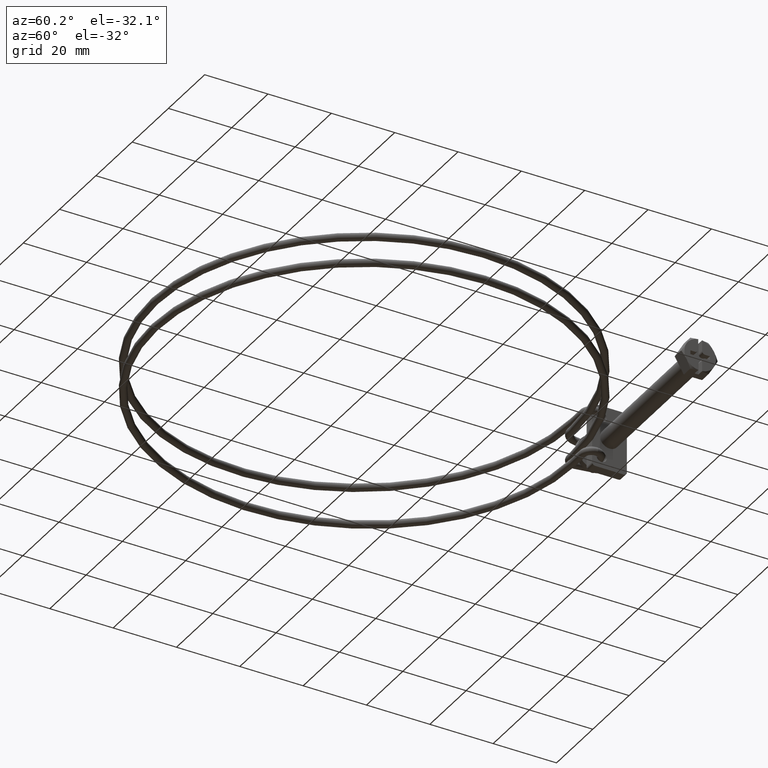
[diagram: clean part render]
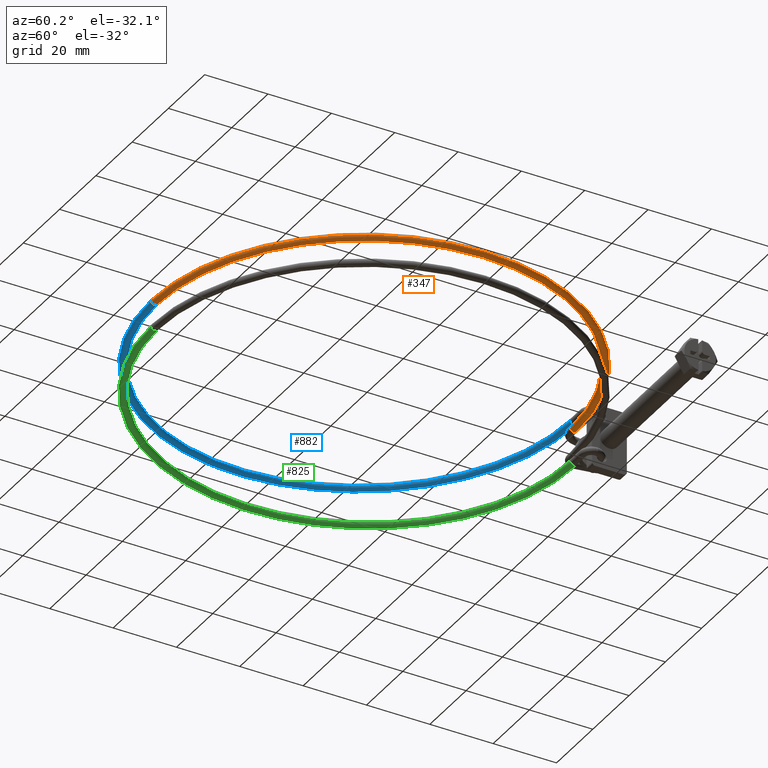
[diagram: same view with three faces highlighted in distinct colors, each labeled with its STEP entity id]
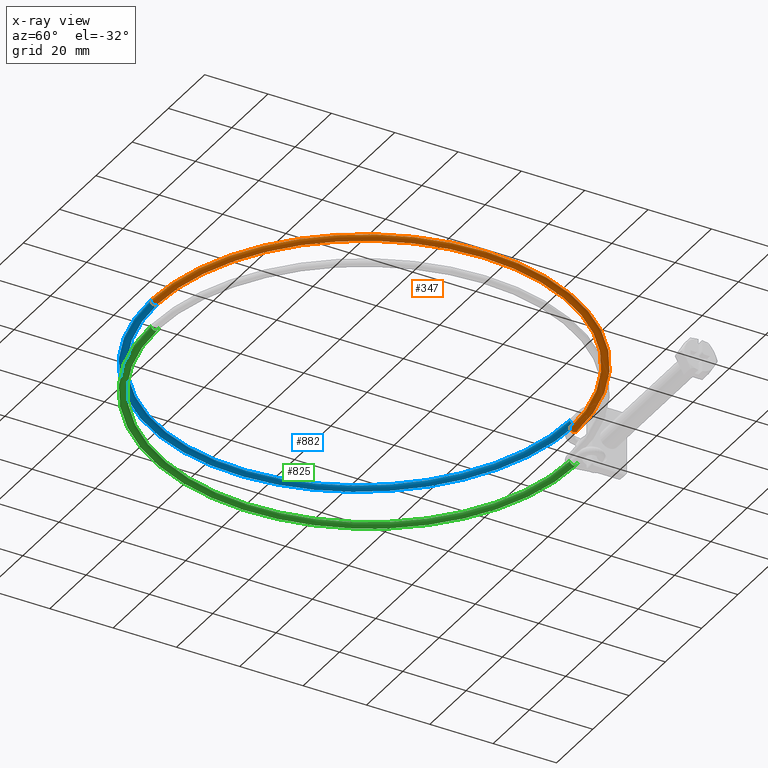
[diagram: x-ray of the same camera — body ghosted, the three highlighted faces saturated]
A machine part, auxiliary view with three faces highlighted in distinct colors.
The next image is the same camera in x-ray (body ghosted, the three faces saturated) — at least one of them is partly hidden behind the body in this view.
Their STEP definitions:

[orange] entity #347 — the highlighted toroidal blend (fillet) surface has major radius 66.15 mm and minor (blend) radius 1.15 mm.
#50 = CARTESIAN_POINT ( 'NONE',  ( 4.795899999999998700, -7.911643725490995000, 3.050000000000001600 ) ) ;
#79 = VERTEX_POINT ( 'NONE', #2110 ) ;
#108 = CIRCLE ( 'NONE', #1162, 65.00000000000000000 ) ;
#126 = TOROIDAL_SURFACE ( 'NONE', #2194, 66.15000000000000600, 1.149999999999999900 ) ;
#172 = VERTEX_POINT ( 'NONE', #793 ) ;
#194 = ORIENTED_EDGE ( 'NONE', *, *, #1541, .F. ) ;
#215 = DIRECTION ( 'NONE',  ( -1.508455196501571800E-014, 0.9945218953682732900, -0.1045284632676540700 ) ) ;
#347 = ADVANCED_FACE ( 'NONE', ( #544 ), #126, .T. ) ;
#504 = EDGE_CURVE ( 'NONE', #2509, #172, #108, .T. ) ;
#544 = FACE_OUTER_BOUND ( 'NONE', #1148, .T. ) ;
#609 = ORIENTED_EDGE ( 'NONE', *, *, #504, .F. ) ;
#660 = CIRCLE ( 'NONE', #2658, 1.150000000000009200 ) ;
#750 = CARTESIAN_POINT ( 'NONE',  ( 4.795899999999999600, -74.06164372549099500, 4.200000000000001100 ) ) ;
#793 = CARTESIAN_POINT ( 'NONE',  ( 4.795899999999988900, -139.0616437254910000, 4.200000000000001100 ) ) ;
#809 = DIRECTION ( 'NONE',  ( -1.000000000000000000, -1.489016563090529400E-014, -1.207367539279857700E-015 ) ) ;
#868 = ORIENTED_EDGE ( 'NONE', *, *, #2941, .T. ) ;
#950 = DIRECTION ( 'NONE',  ( -1.508455196501571800E-014, 0.9945218953682732900, -0.1045284632676540700 ) ) ;
#972 = DIRECTION ( 'NONE',  ( -0.0000000000000000000, -0.0000000000000000000, -1.000000000000000000 ) ) ;
#992 = DIRECTION ( 'NONE',  ( -1.000000000000000000, 0.0000000000000000000, 0.0000000000000000000 ) ) ;
#1085 = CARTESIAN_POINT ( 'NONE',  ( 4.795899999999999600, -74.06164372549099500, 4.200000000000001100 ) ) ;
#1098 = DIRECTION ( 'NONE',  ( -1.000000000000000000, -1.489016563090529400E-014, -1.207367539279857700E-015 ) ) ;
#1143 = DIRECTION ( 'NONE',  ( -1.000000000000000000, 0.0000000000000000000, 0.0000000000000000000 ) ) ;
#1148 = EDGE_LOOP ( 'NONE', ( #2636, #868, #2939, #194, #609, #1184 ) ) ;
#1162 = AXIS2_PLACEMENT_3D ( 'NONE', #2731, #1504, #1143 ) ;
#1181 = CARTESIAN_POINT ( 'NONE',  ( 4.795900000000000500, -7.911643725490995000, 4.200000000000001100 ) ) ;
#1184 = ORIENTED_EDGE ( 'NONE', *, *, #2465, .T. ) ;
#1239 = DIRECTION ( 'NONE',  ( 1.508455196501559200E-014, -0.9945218953682734000, -0.1045284632676531900 ) ) ;
#1324 = DIRECTION ( 'NONE',  ( -1.000000000000000000, 0.0000000000000000000, 0.0000000000000000000 ) ) ;
#1338 = EDGE_CURVE ( 'NONE', #2135, #79, #1756, .T. ) ;
#1504 = DIRECTION ( 'NONE',  ( -0.0000000000000000000, -0.0000000000000000000, -1.000000000000000000 ) ) ;
#1541 = EDGE_CURVE ( 'NONE', #172, #2686, #660, .T. ) ;
#1578 = CARTESIAN_POINT ( 'NONE',  ( 4.795900000000006700, -140.2116437254910000, 4.200000000000001100 ) ) ;
#1657 = DIRECTION ( 'NONE',  ( 1.000000000000000000, 1.476770095099055900E-014, -1.207367539279857700E-015 ) ) ;
#1756 = CIRCLE ( 'NONE', #2568, 1.149999999999999700 ) ;
#1761 = AXIS2_PLACEMENT_3D ( 'NONE', #3095, #1657, #215 ) ;
#1870 = VERTEX_POINT ( 'NONE', #3085 ) ;
#2108 = CIRCLE ( 'NONE', #2124, 1.150000000000009200 ) ;
#2110 = CARTESIAN_POINT ( 'NONE',  ( 4.795899999999982700, -6.761643725490996500, 4.200000000000001100 ) ) ;
#2124 = AXIS2_PLACEMENT_3D ( 'NONE', #2271, #809, #2523 ) ;
#2135 = VERTEX_POINT ( 'NONE', #50 ) ;
#2194 = AXIS2_PLACEMENT_3D ( 'NONE', #750, #972, #992 ) ;
#2271 = CARTESIAN_POINT ( 'NONE',  ( 4.795900000000006700, -140.2116437254910000, 4.200000000000001100 ) ) ;
#2465 = EDGE_CURVE ( 'NONE', #2509, #2135, #2665, .T. ) ;
#2509 = VERTEX_POINT ( 'NONE', #2866 ) ;
#2523 = DIRECTION ( 'NONE',  ( 1.508455196501559200E-014, -0.9945218953682734000, -0.1045284632676531900 ) ) ;
#2568 = AXIS2_PLACEMENT_3D ( 'NONE', #1181, #3103, #950 ) ;
#2636 = ORIENTED_EDGE ( 'NONE', *, *, #1338, .T. ) ;
#2658 = AXIS2_PLACEMENT_3D ( 'NONE', #1578, #1098, #1239 ) ;
#2663 = CIRCLE ( 'NONE', #2910, 67.29999999999999700 ) ;
#2665 = CIRCLE ( 'NONE', #1761, 1.149999999999999700 ) ;
#2686 = VERTEX_POINT ( 'NONE', #2942 ) ;
#2731 = CARTESIAN_POINT ( 'NONE',  ( 4.795899999999999600, -74.06164372549099500, 4.200000000000001100 ) ) ;
#2776 = DIRECTION ( 'NONE',  ( -0.0000000000000000000, -0.0000000000000000000, -1.000000000000000000 ) ) ;
#2866 = CARTESIAN_POINT ( 'NONE',  ( 4.795900000000018300, -9.061643725490995400, 4.200000000000001100 ) ) ;
#2897 = EDGE_CURVE ( 'NONE', #2686, #1870, #2108, .T. ) ;
#2910 = AXIS2_PLACEMENT_3D ( 'NONE', #1085, #2776, #1324 ) ;
#2939 = ORIENTED_EDGE ( 'NONE', *, *, #2897, .F. ) ;
#2941 = EDGE_CURVE ( 'NONE', #79, #1870, #2663, .T. ) ;
#2942 = CARTESIAN_POINT ( 'NONE',  ( 4.795900000000023600, -141.3614623489451700, 4.179576162017255600 ) ) ;
#3085 = CARTESIAN_POINT ( 'NONE',  ( 4.795900000000022700, -141.3616437254909800, 4.200000000000001100 ) ) ;
#3095 = CARTESIAN_POINT ( 'NONE',  ( 4.795900000000000500, -7.911643725490995000, 4.200000000000001100 ) ) ;
#3103 = DIRECTION ( 'NONE',  ( 1.000000000000000000, 1.476770095099055900E-014, -1.207367539279857700E-015 ) ) ;

[blue] entity #882 — the highlighted toroidal blend (fillet) surface has major radius 66.1604 mm and minor (blend) radius 1.15 mm.
#48 = CARTESIAN_POINT ( 'NONE',  ( 4.795900000000924200, -7.911643725491024300, 6.550000000000000700 ) ) ;
#172 = VERTEX_POINT ( 'NONE', #793 ) ;
#186 = AXIS2_PLACEMENT_3D ( 'NONE', #1245, #1278, #1926 ) ;
#250 = CIRCLE ( 'NONE', #1367, 1.150000000000009200 ) ;
#291 = DIRECTION ( 'NONE',  ( -7.542275982507854200E-016, 0.9976067618839275000, -0.06914295801789838200 ) ) ;
#396 = EDGE_CURVE ( 'NONE', #2686, #2882, #2895, .T. ) ;
#542 = DIRECTION ( 'NONE',  ( -0.0000000000000000000, 0.01775985911543140700, -0.9998422812645002500 ) ) ;
#581 = CARTESIAN_POINT ( 'NONE',  ( 4.795899999999999600, -74.06164372549099500, 5.375000000000000900 ) ) ;
#660 = CIRCLE ( 'NONE', #2658, 1.150000000000009200 ) ;
#738 = CARTESIAN_POINT ( 'NONE',  ( 4.795899999999988900, -139.0618251020368300, 4.220423837982748300 ) ) ;
#793 = CARTESIAN_POINT ( 'NONE',  ( 4.795899999999988900, -139.0616437254910000, 4.200000000000001100 ) ) ;
#817 = DIRECTION ( 'NONE',  ( 0.0000000000000000000, 0.9998422812645003700, 0.01775985911543141400 ) ) ;
#882 = ADVANCED_FACE ( 'NONE', ( #2892 ), #3121, .T. ) ;
#1069 = CIRCLE ( 'NONE', #1539, 1.150000000000000400 ) ;
#1098 = DIRECTION ( 'NONE',  ( -1.000000000000000000, -1.489016563090529400E-014, -1.207367539279857700E-015 ) ) ;
#1239 = DIRECTION ( 'NONE',  ( 1.508455196501559200E-014, -0.9945218953682734000, -0.1045284632676531900 ) ) ;
#1245 = CARTESIAN_POINT ( 'NONE',  ( 4.795899999999999600, -74.06164372549099500, 5.375000000000000900 ) ) ;
#1278 = DIRECTION ( 'NONE',  ( -0.0000000000000000000, 0.01775985911543140700, -0.9998422812645002500 ) ) ;
#1293 = AXIS2_PLACEMENT_3D ( 'NONE', #3097, #1664, #2393 ) ;
#1311 = DIRECTION ( 'NONE',  ( 1.508455196501559200E-014, -0.9945218953682734000, -0.1045284632676531900 ) ) ;
#1367 = AXIS2_PLACEMENT_3D ( 'NONE', #2298, #2281, #1311 ) ;
#1373 = ORIENTED_EDGE ( 'NONE', *, *, #1434, .T. ) ;
#1434 = EDGE_CURVE ( 'NONE', #2605, #172, #250, .T. ) ;
#1454 = ORIENTED_EDGE ( 'NONE', *, *, #1541, .T. ) ;
#1537 = CARTESIAN_POINT ( 'NONE',  ( 4.795900000000925100, -9.061462348945184400, 6.529576162017255200 ) ) ;
#1539 = AXIS2_PLACEMENT_3D ( 'NONE', #48, #1731, #291 ) ;
#1541 = EDGE_CURVE ( 'NONE', #172, #2686, #660, .T. ) ;
#1578 = CARTESIAN_POINT ( 'NONE',  ( 4.795900000000006700, -140.2116437254910000, 4.200000000000001100 ) ) ;
#1630 = EDGE_CURVE ( 'NONE', #2884, #2179, #2218, .T. ) ;
#1644 = ORIENTED_EDGE ( 'NONE', *, *, #1630, .F. ) ;
#1664 = DIRECTION ( 'NONE',  ( 1.000000000000000000, 8.374830980649281300E-016, -9.280026525596763500E-016 ) ) ;
#1731 = DIRECTION ( 'NONE',  ( 1.000000000000000000, 8.374830980649281300E-016, -9.280026525596763500E-016 ) ) ;
#1739 = ORIENTED_EDGE ( 'NONE', *, *, #396, .T. ) ;
#1926 = DIRECTION ( 'NONE',  ( 0.0000000000000000000, 0.9998422812645003700, 0.01775985911543140700 ) ) ;
#1989 = CARTESIAN_POINT ( 'NONE',  ( 4.795899999999999600, -74.06164372549099500, 5.375000000000000900 ) ) ;
#2027 = CARTESIAN_POINT ( 'NONE',  ( 4.795900000000923300, -6.761825102036835800, 6.570423837982747100 ) ) ;
#2179 = VERTEX_POINT ( 'NONE', #3005 ) ;
#2218 = CIRCLE ( 'NONE', #1293, 1.150000000000000400 ) ;
#2248 = EDGE_LOOP ( 'NONE', ( #1373, #1454, #1739, #2282, #1644, #2914 ) ) ;
#2281 = DIRECTION ( 'NONE',  ( -1.000000000000000000, -1.489016563090529400E-014, -1.207367539279857700E-015 ) ) ;
#2282 = ORIENTED_EDGE ( 'NONE', *, *, #2666, .F. ) ;
#2288 = DIRECTION ( 'NONE',  ( -0.0000000000000000000, 0.01775985911543140700, -0.9998422812645002500 ) ) ;
#2298 = CARTESIAN_POINT ( 'NONE',  ( 4.795900000000006700, -140.2116437254910000, 4.200000000000001100 ) ) ;
#2393 = DIRECTION ( 'NONE',  ( -7.542275982507854200E-016, 0.9976067618839275000, -0.06914295801789838200 ) ) ;
#2443 = AXIS2_PLACEMENT_3D ( 'NONE', #581, #2288, #817 ) ;
#2605 = VERTEX_POINT ( 'NONE', #738 ) ;
#2658 = AXIS2_PLACEMENT_3D ( 'NONE', #1578, #1098, #1239 ) ;
#2666 = EDGE_CURVE ( 'NONE', #2179, #2882, #1069, .T. ) ;
#2686 = VERTEX_POINT ( 'NONE', #2942 ) ;
#2730 = CIRCLE ( 'NONE', #2443, 65.01043474010731400 ) ;
#2882 = VERTEX_POINT ( 'NONE', #2027 ) ;
#2884 = VERTEX_POINT ( 'NONE', #1537 ) ;
#2892 = FACE_OUTER_BOUND ( 'NONE', #2248, .T. ) ;
#2895 = CIRCLE ( 'NONE', #186, 67.31043474010731100 ) ;
#2914 = ORIENTED_EDGE ( 'NONE', *, *, #2921, .F. ) ;
#2921 = EDGE_CURVE ( 'NONE', #2605, #2884, #2730, .T. ) ;
#2942 = CARTESIAN_POINT ( 'NONE',  ( 4.795900000000023600, -141.3614623489451700, 4.179576162017255600 ) ) ;
#2959 = DIRECTION ( 'NONE',  ( 0.0000000000000000000, 0.9998422812645002500, 0.01775985911543140700 ) ) ;
#3005 = CARTESIAN_POINT ( 'NONE',  ( 4.795900000000923300, -6.761643725491024000, 6.550000000000000700 ) ) ;
#3031 = AXIS2_PLACEMENT_3D ( 'NONE', #1989, #542, #2959 ) ;
#3097 = CARTESIAN_POINT ( 'NONE',  ( 4.795900000000924200, -7.911643725491024300, 6.550000000000000700 ) ) ;
#3121 = TOROIDAL_SURFACE ( 'NONE', #3031, 66.16043474010732000, 1.149999999999999900 ) ;

[green] entity #825 — the highlighted toroidal blend (fillet) surface has major radius 66.1604 mm and minor (blend) radius 1.15 mm.
#13 = ORIENTED_EDGE ( 'NONE', *, *, #1169, .F. ) ;
#64 = CARTESIAN_POINT ( 'NONE',  ( 4.795900000000023600, -141.3614623489451700, -4.179576162017255600 ) ) ;
#70 = CARTESIAN_POINT ( 'NONE',  ( 4.795899999999999600, -74.06164372549099500, -5.375000000000000900 ) ) ;
#109 = AXIS2_PLACEMENT_3D ( 'NONE', #2794, #1361, #3033 ) ;
#177 = DIRECTION ( 'NONE',  ( 1.000000000000000000, 1.489016563090529400E-014, -1.207367539279857700E-015 ) ) ;
#201 = ORIENTED_EDGE ( 'NONE', *, *, #251, .T. ) ;
#203 = CIRCLE ( 'NONE', #1212, 1.150000000000000400 ) ;
#238 = DIRECTION ( 'NONE',  ( -0.0000000000000000000, -0.01775985911543140700, -0.9998422812645002500 ) ) ;
#251 = EDGE_CURVE ( 'NONE', #1941, #897, #203, .T. ) ;
#297 = EDGE_CURVE ( 'NONE', #2835, #1941, #1419, .T. ) ;
#320 = DIRECTION ( 'NONE',  ( 0.0000000000000000000, 0.9998422812645003700, -0.01775985911543140700 ) ) ;
#366 = CIRCLE ( 'NONE', #1295, 65.01043474010731400 ) ;
#443 = DIRECTION ( 'NONE',  ( -1.000000000000000000, -8.374830980649281300E-016, -9.280026525596763500E-016 ) ) ;
#464 = AXIS2_PLACEMENT_3D ( 'NONE', #1898, #443, #2143 ) ;
#528 = CIRCLE ( 'NONE', #464, 1.150000000000000400 ) ;
#622 = CIRCLE ( 'NONE', #3074, 1.150000000000009200 ) ;
#629 = FACE_OUTER_BOUND ( 'NONE', #2077, .T. ) ;
#647 = ORIENTED_EDGE ( 'NONE', *, *, #1823, .F. ) ;
#705 = DIRECTION ( 'NONE',  ( 0.0000000000000000000, 0.9998422812645003700, -0.01775985911543141400 ) ) ;
#825 = ADVANCED_FACE ( 'NONE', ( #629 ), #1923, .T. ) ;
#897 = VERTEX_POINT ( 'NONE', #2760 ) ;
#966 = CARTESIAN_POINT ( 'NONE',  ( 4.795899999999999600, -74.06164372549099500, -5.375000000000000900 ) ) ;
#1084 = DIRECTION ( 'NONE',  ( 0.0000000000000000000, 0.9998422812645002500, -0.01775985911543140700 ) ) ;
#1169 = EDGE_CURVE ( 'NONE', #2800, #2432, #366, .T. ) ;
#1212 = AXIS2_PLACEMENT_3D ( 'NONE', #1271, #1488, #1931 ) ;
#1271 = CARTESIAN_POINT ( 'NONE',  ( 4.795900000000924200, -7.911643725491024300, -6.550000000000000700 ) ) ;
#1294 = CIRCLE ( 'NONE', #109, 1.150000000000009200 ) ;
#1295 = AXIS2_PLACEMENT_3D ( 'NONE', #966, #3089, #705 ) ;
#1361 = DIRECTION ( 'NONE',  ( 1.000000000000000000, 1.489016563090529400E-014, -1.207367539279857700E-015 ) ) ;
#1419 = CIRCLE ( 'NONE', #1698, 67.31043474010731100 ) ;
#1431 = CARTESIAN_POINT ( 'NONE',  ( 4.795900000000925100, -9.061462348945184400, -6.529576162017255200 ) ) ;
#1488 = DIRECTION ( 'NONE',  ( -1.000000000000000000, -8.374830980649281300E-016, -9.280026525596763500E-016 ) ) ;
#1567 = ORIENTED_EDGE ( 'NONE', *, *, #297, .T. ) ;
#1572 = CARTESIAN_POINT ( 'NONE',  ( 4.795899999999999600, -74.06164372549099500, -5.375000000000000900 ) ) ;
#1698 = AXIS2_PLACEMENT_3D ( 'NONE', #70, #238, #320 ) ;
#1823 = EDGE_CURVE ( 'NONE', #2835, #2804, #622, .T. ) ;
#1892 = CARTESIAN_POINT ( 'NONE',  ( 4.795900000000006700, -140.2116437254910000, -4.200000000000001100 ) ) ;
#1898 = CARTESIAN_POINT ( 'NONE',  ( 4.795900000000924200, -7.911643725491024300, -6.550000000000000700 ) ) ;
#1923 = TOROIDAL_SURFACE ( 'NONE', #2234, 66.16043474010732000, 1.149999999999999900 ) ;
#1931 = DIRECTION ( 'NONE',  ( -7.542275982507854200E-016, 0.9976067618839275000, 0.06914295801789838200 ) ) ;
#1941 = VERTEX_POINT ( 'NONE', #2822 ) ;
#2053 = DIRECTION ( 'NONE',  ( -0.0000000000000000000, -0.01775985911543140700, -0.9998422812645002500 ) ) ;
#2077 = EDGE_LOOP ( 'NONE', ( #647, #1567, #201, #3075, #13, #2700 ) ) ;
#2143 = DIRECTION ( 'NONE',  ( -7.542275982507854200E-016, 0.9976067618839275000, 0.06914295801789838200 ) ) ;
#2231 = CARTESIAN_POINT ( 'NONE',  ( 4.795899999999988900, -139.0618251020368300, -4.220423837982748300 ) ) ;
#2234 = AXIS2_PLACEMENT_3D ( 'NONE', #1572, #2053, #1084 ) ;
#2368 = EDGE_CURVE ( 'NONE', #897, #2432, #528, .T. ) ;
#2380 = DIRECTION ( 'NONE',  ( 1.508455196501559200E-014, -0.9945218953682734000, 0.1045284632676531900 ) ) ;
#2432 = VERTEX_POINT ( 'NONE', #1431 ) ;
#2479 = CARTESIAN_POINT ( 'NONE',  ( 4.795900000000022700, -141.3616437254909800, -4.200000000000001100 ) ) ;
#2700 = ORIENTED_EDGE ( 'NONE', *, *, #3003, .F. ) ;
#2760 = CARTESIAN_POINT ( 'NONE',  ( 4.795900000000925100, -9.061643725491023800, -6.550000000000000700 ) ) ;
#2794 = CARTESIAN_POINT ( 'NONE',  ( 4.795900000000006700, -140.2116437254910000, -4.200000000000001100 ) ) ;
#2800 = VERTEX_POINT ( 'NONE', #2231 ) ;
#2804 = VERTEX_POINT ( 'NONE', #2479 ) ;
#2822 = CARTESIAN_POINT ( 'NONE',  ( 4.795900000000923300, -6.761825102036835800, -6.570423837982747100 ) ) ;
#2835 = VERTEX_POINT ( 'NONE', #64 ) ;
#3003 = EDGE_CURVE ( 'NONE', #2804, #2800, #1294, .T. ) ;
#3033 = DIRECTION ( 'NONE',  ( 1.508455196501559200E-014, -0.9945218953682734000, 0.1045284632676531900 ) ) ;
#3074 = AXIS2_PLACEMENT_3D ( 'NONE', #1892, #177, #2380 ) ;
#3075 = ORIENTED_EDGE ( 'NONE', *, *, #2368, .T. ) ;
#3089 = DIRECTION ( 'NONE',  ( -0.0000000000000000000, -0.01775985911543140700, -0.9998422812645002500 ) ) ;